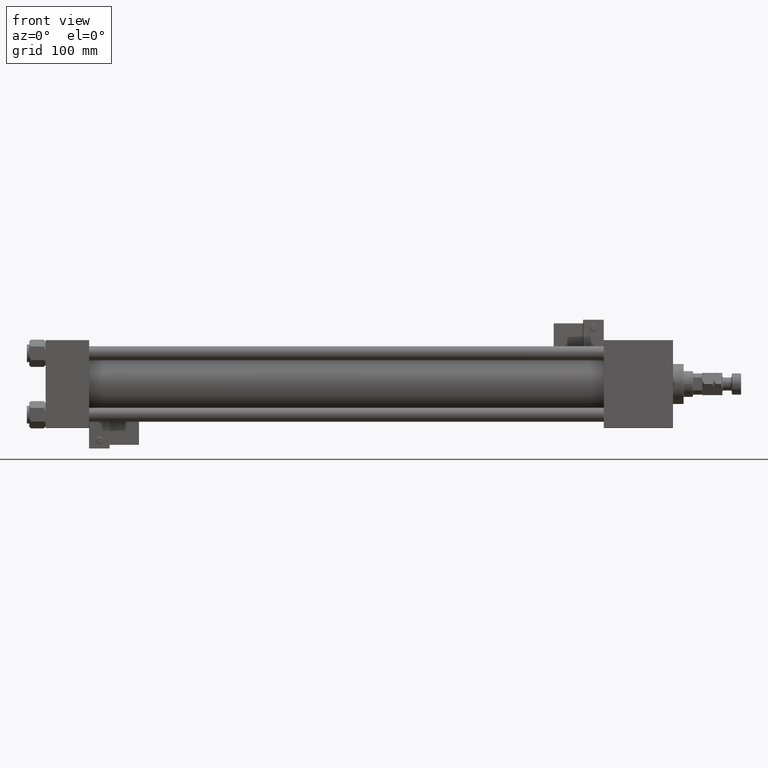
[diagram: clean part render]
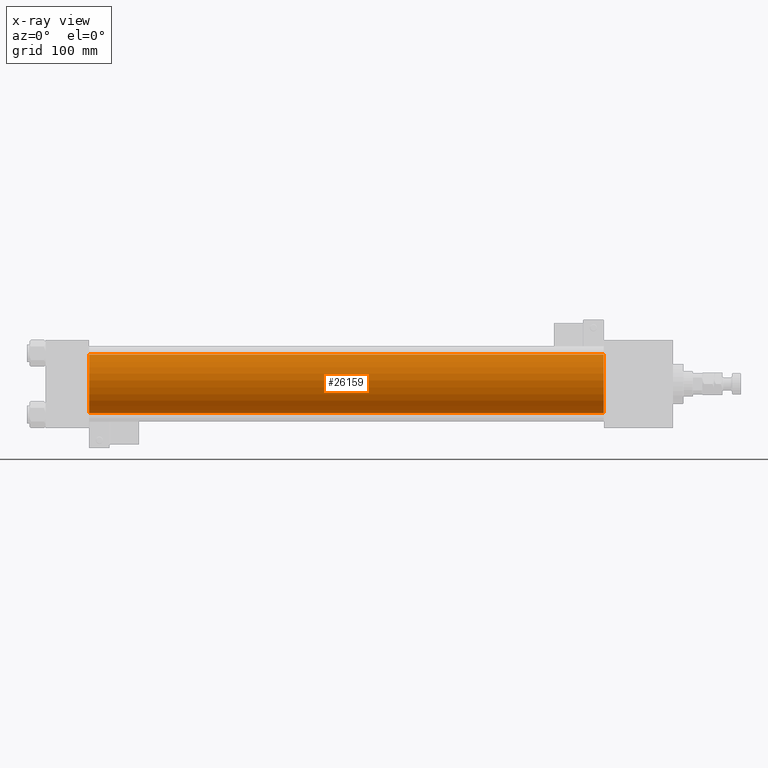
[diagram: x-ray — body ghosted, one internal face saturated and labeled with its STEP entity id]
A machine part, front view, then the same camera in x-ray: the body is ghosted and one INTERNAL B-rep face — a face not visible from any outside direction — is saturated and labeled: STEP entity #26159.
In plain terms, the highlighted cylindrical surface (edge-blend (fillet) strip) has radius 25 mm, axis along (-1, -0, -0).
Its self-contained STEP definition (entity closure, byte-faithful):
#2197 = CARTESIAN_POINT ( 'NONE',  ( 475.0000000000000000, 4.595317839031724996E-16, -25.00000000000000000 ) ) ;
#2237 = VERTEX_POINT ( 'NONE', #22725 ) ;
#3299 = EDGE_CURVE ( 'NONE', #31074, #2237, #20172, .T. ) ;
#3737 = DIRECTION ( 'NONE',  ( 0.000000000000000000, 0.000000000000000000, 1.000000000000000000 ) ) ;
#5044 = CARTESIAN_POINT ( 'NONE',  ( 475.0000000000000000, -2.602085213965210642E-15, 25.00000000000000000 ) ) ;
#5528 = VECTOR ( 'NONE', #34847, 1000.000000000000000 ) ;
#6725 = CARTESIAN_POINT ( 'NONE',  ( 475.0000000000000000, -2.602085213965210642E-15, 25.00000000000000000 ) ) ;
#7994 = DIRECTION ( 'NONE',  ( 0.000000000000000000, 0.000000000000000000, -1.000000000000000000 ) ) ;
#11192 = VECTOR ( 'NONE', #14946, 1000.000000000000000 ) ;
#14235 = ORIENTED_EDGE ( 'NONE', *, *, #51745, .T. ) ;
#14946 = DIRECTION ( 'NONE',  ( -1.000000000000000000, -0.000000000000000000, -0.000000000000000000 ) ) ;
#16490 = CARTESIAN_POINT ( 'NONE',  ( 37.00000000000000000, -2.602085213965210642E-15, 0.000000000000000000 ) ) ;
#17080 = AXIS2_PLACEMENT_3D ( 'NONE', #29250, #51156, #25393 ) ;
#17465 = ORIENTED_EDGE ( 'NONE', *, *, #3299, .F. ) ;
#17612 = EDGE_CURVE ( 'NONE', #33229, #19911, #52354, .T. ) ;
#17969 = AXIS2_PLACEMENT_3D ( 'NONE', #36938, #41310, #3737 ) ;
#19911 = VERTEX_POINT ( 'NONE', #28775 ) ;
#20172 = LINE ( 'NONE', #6725, #11192 ) ;
#22725 = CARTESIAN_POINT ( 'NONE',  ( 37.00000000000000000, -2.602085213965210642E-15, 25.00000000000000000 ) ) ;
#24571 = CYLINDRICAL_SURFACE ( 'NONE', #17969, 25.00000000000000000 ) ;
#25393 = DIRECTION ( 'NONE',  ( 0.000000000000000000, 0.000000000000000000, -1.000000000000000000 ) ) ;
#26159 = ADVANCED_FACE ( 'NONE', ( #41040 ), #24571, .F. ) ;
#28775 = CARTESIAN_POINT ( 'NONE',  ( 37.00000000000000000, 4.595317839031724996E-16, -25.00000000000000000 ) ) ;
#29250 = CARTESIAN_POINT ( 'NONE',  ( 475.0000000000000000, -2.602085213965210642E-15, 0.000000000000000000 ) ) ;
#30524 = EDGE_LOOP ( 'NONE', ( #14235, #38338, #34819, #17465 ) ) ;
#31074 = VERTEX_POINT ( 'NONE', #5044 ) ;
#33229 = VERTEX_POINT ( 'NONE', #46198 ) ;
#34819 = ORIENTED_EDGE ( 'NONE', *, *, #45960, .F. ) ;
#34847 = DIRECTION ( 'NONE',  ( -1.000000000000000000, -0.000000000000000000, -0.000000000000000000 ) ) ;
#36938 = CARTESIAN_POINT ( 'NONE',  ( 475.0000000000000000, -2.602085213965210642E-15, 0.000000000000000000 ) ) ;
#38338 = ORIENTED_EDGE ( 'NONE', *, *, #17612, .T. ) ;
#41040 = FACE_OUTER_BOUND ( 'NONE', #30524, .T. ) ;
#41310 = DIRECTION ( 'NONE',  ( -1.000000000000000000, -0.000000000000000000, -0.000000000000000000 ) ) ;
#43255 = AXIS2_PLACEMENT_3D ( 'NONE', #16490, #49682, #7994 ) ;
#45960 = EDGE_CURVE ( 'NONE', #2237, #19911, #50252, .T. ) ;
#46198 = CARTESIAN_POINT ( 'NONE',  ( 475.0000000000000000, 4.595317839031724996E-16, -25.00000000000000000 ) ) ;
#49682 = DIRECTION ( 'NONE',  ( 1.000000000000000000, 0.000000000000000000, 0.000000000000000000 ) ) ;
#50252 = CIRCLE ( 'NONE', #43255, 25.00000000000000000 ) ;
#51156 = DIRECTION ( 'NONE',  ( 1.000000000000000000, 0.000000000000000000, 0.000000000000000000 ) ) ;
#51745 = EDGE_CURVE ( 'NONE', #31074, #33229, #53845, .T. ) ;
#52354 = LINE ( 'NONE', #2197, #5528 ) ;
#53845 = CIRCLE ( 'NONE', #17080, 25.00000000000000000 ) ;